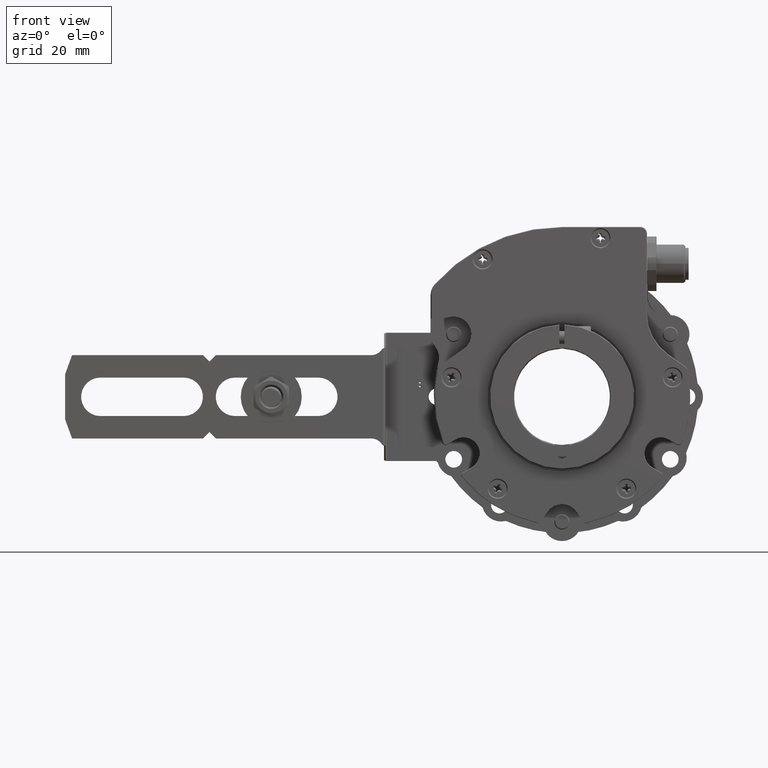
[diagram: clean part render]
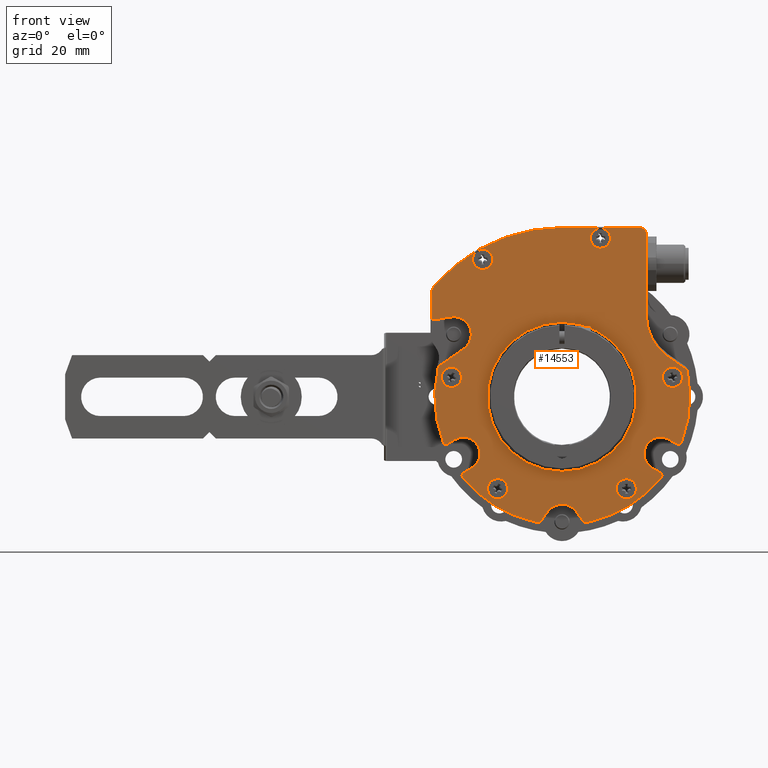
[diagram: same view with one face highlighted and labeled with its STEP entity id]
A machine part, front view. The second image highlights one B-rep face of the part: STEP entity #14553.
In plain terms, the highlighted planar face has unit normal (-0, 1, 0).
Its self-contained STEP definition (entity closure, byte-faithful):
#343 = DIRECTION ( 'NONE',  ( 0.8660254037844407100, 0.0000000000000000000, -0.4999999999999965000 ) ) ;
#371 = CARTESIAN_POINT ( 'NONE',  ( -38.56301421357414900, -1.999999999999994900, 9.433129637807208900 ) ) ;
#384 = CIRCLE ( 'NONE', #37308, 3.149999999999999900 ) ;
#396 = AXIS2_PLACEMENT_3D ( 'NONE', #24205, #2511, #27840 ) ;
#522 = AXIS2_PLACEMENT_3D ( 'NONE', #30004, #8299, #33669 ) ;
#925 = CARTESIAN_POINT ( 'NONE',  ( 16.79544052503335600, -1.999999999999994900, 23.98637490818222400 ) ) ;
#930 = CARTESIAN_POINT ( 'NONE',  ( -36.86646794779085200, -1.999999999999994900, -14.72934285888237600 ) ) ;
#941 = CARTESIAN_POINT ( 'NONE',  ( 34.46827135542729800, -1.999999999999998200, 9.227686218342460800 ) ) ;
#1096 = DIRECTION ( 'NONE',  ( 6.938893903907222100E-015, 0.0000000000000000000, 1.000000000000000000 ) ) ;
#1135 = CARTESIAN_POINT ( 'NONE',  ( -24.75000000000006000, -1.999999999999998200, 42.86825748732967900 ) ) ;
#1238 = AXIS2_PLACEMENT_3D ( 'NONE', #46941, #25255, #3541 ) ;
#1355 = AXIS2_PLACEMENT_3D ( 'NONE', #16885, #42249, #20550 ) ;
#1394 = DIRECTION ( 'NONE',  ( 0.0000000000000000000, -1.000000000000000000, 0.0000000000000000000 ) ) ;
#1531 = CARTESIAN_POINT ( 'NONE',  ( 39.07957754143955500, -1.999999999999994900, 8.049634723551941200 ) ) ;
#1577 = AXIS2_PLACEMENT_3D ( 'NONE', #10376, #35723, #14034 ) ;
#1630 = DIRECTION ( 'NONE',  ( -0.0000000000000000000, 1.000000000000000000, -0.0000000000000000000 ) ) ;
#1789 = VERTEX_POINT ( 'NONE', #31482 ) ;
#1838 = AXIS2_PLACEMENT_3D ( 'NONE', #1135, #26457, #4765 ) ;
#1936 = VERTEX_POINT ( 'NONE', #46654 ) ;
#2240 = ORIENTED_EDGE ( 'NONE', *, *, #26994, .F. ) ;
#2430 = DIRECTION ( 'NONE',  ( -0.0000000000000000000, -1.000000000000000000, -0.0000000000000000000 ) ) ;
#2489 = CARTESIAN_POINT ( 'NONE',  ( -35.79999999999999700, -1.999999999999994900, 31.67333263172665500 ) ) ;
#2511 = DIRECTION ( 'NONE',  ( -0.0000000000000000000, 1.000000000000000000, -0.0000000000000000000 ) ) ;
#2632 = CIRCLE ( 'NONE', #18481, 1.000000000000000900 ) ;
#2651 = EDGE_CURVE ( 'NONE', #32605, #38983, #4684, .T. ) ;
#2811 = EDGE_CURVE ( 'NONE', #12061, #1936, #19418, .T. ) ;
#2846 = CARTESIAN_POINT ( 'NONE',  ( -6.705581468056939400, -1.999999999999994900, -38.98760543173632700 ) ) ;
#2861 = CARTESIAN_POINT ( 'NONE',  ( -8.889178518051185300, -1.999999999999994900, -38.89720433751271100 ) ) ;
#2905 = CARTESIAN_POINT ( 'NONE',  ( 41.80000000000000400, -1.999999999999994900, 25.40000000000016600 ) ) ;
#2972 = CARTESIAN_POINT ( 'NONE',  ( -20.07517527228645400, -1.999999999999998200, -28.67032155011482800 ) ) ;
#3015 = EDGE_CURVE ( 'NONE', #28146, #20407, #33041, .T. ) ;
#3127 = DIRECTION ( 'NONE',  ( 0.0000000000000000000, 0.0000000000000000000, -1.000000000000000000 ) ) ;
#3303 = CARTESIAN_POINT ( 'NONE',  ( -34.73005572476111500, -1.999999999999994900, 24.91644264156730800 ) ) ;
#3415 = DIRECTION ( 'NONE',  ( -3.469446951953611000E-015, 0.0000000000000000000, 1.000000000000000000 ) ) ;
#3442 = AXIS2_PLACEMENT_3D ( 'NONE', #35722, #14033, #39368 ) ;
#3470 = ORIENTED_EDGE ( 'NONE', *, *, #30777, .F. ) ;
#3500 = AXIS2_PLACEMENT_3D ( 'NONE', #23315, #1630, #26951 ) ;
#3541 = DIRECTION ( 'NONE',  ( -6.938893903907234700E-015, 0.0000000000000000000, 1.000000000000000000 ) ) ;
#3544 = VECTOR ( 'NONE', #343, 1000.000000000000100 ) ;
#3545 = DIRECTION ( 'NONE',  ( 0.0000000000000000000, 0.0000000000000000000, -1.000000000000000000 ) ) ;
#3557 = VERTEX_POINT ( 'NONE', #36386 ) ;
#3594 = CARTESIAN_POINT ( 'NONE',  ( -40.60000000000000100, -1.999999999999994900, 24.20263589089835000 ) ) ;
#3763 = CIRCLE ( 'NONE', #25757, 23.25000000000000000 ) ;
#3801 = ORIENTED_EDGE ( 'NONE', *, *, #36822, .F. ) ;
#4265 = VECTOR ( 'NONE', #31098, 1000.000000000000000 ) ;
#4266 = AXIS2_PLACEMENT_3D ( 'NONE', #15745, #41120, #19403 ) ;
#4432 = CARTESIAN_POINT ( 'NONE',  ( -10.11450387768230100, -1.999999999999994900, -44.25897435897435600 ) ) ;
#4559 = DIRECTION ( 'NONE',  ( 0.0000000000000000000, -1.000000000000000000, 0.0000000000000000000 ) ) ;
#4566 = DIRECTION ( 'NONE',  ( 0.0000000000000000000, -1.000000000000000000, 0.0000000000000000000 ) ) ;
#4684 = LINE ( 'NONE', #11248, #3544 ) ;
#4765 = DIRECTION ( 'NONE',  ( 0.0000000000000000000, 0.0000000000000000000, -1.000000000000000000 ) ) ;
#4796 = CARTESIAN_POINT ( 'NONE',  ( 24.30000000000000100, -1.999999999999994900, 52.79999999999999700 ) ) ;
#5137 = EDGE_LOOP ( 'NONE', ( #2240, #9451, #10392, #44400, #44473, #22489, #11065, #24380, #45557, #26263, #35841, #29350, #18141, #28291, #18499, #9796, #5251, #6901, #40047, #10492, #33436, #38862, #23405, #42640, #17397, #9057, #45812, #6167, #45465, #32467, #6317, #13462, #17254, #12431, #18051, #32486, #3470 ) ) ;
#5220 = CARTESIAN_POINT ( 'NONE',  ( -24.75000000000006000, -1.999999999999998200, 42.86825748732967900 ) ) ;
#5251 = ORIENTED_EDGE ( 'NONE', *, *, #42923, .F. ) ;
#5294 = ORIENTED_EDGE ( 'NONE', *, *, #11383, .F. ) ;
#5315 = CARTESIAN_POINT ( 'NONE',  ( 32.90956523655881900, -1.999999999999994900, 12.70314331352077800 ) ) ;
#5821 = CIRCLE ( 'NONE', #11617, 52.79999999999999700 ) ;
#5983 = AXIS2_PLACEMENT_3D ( 'NONE', #37718, #15982, #41373 ) ;
#6066 = CARTESIAN_POINT ( 'NONE',  ( -4.505336243589449700, -1.999999999999994900, -35.84532960006924200 ) ) ;
#6078 = AXIS2_PLACEMENT_3D ( 'NONE', #5220, #30588, #8869 ) ;
#6093 = VERTEX_POINT ( 'NONE', #14452 ) ;
#6137 = DIRECTION ( 'NONE',  ( 1.387778780781446500E-015, 0.0000000000000000000, 1.000000000000000000 ) ) ;
#6167 = ORIENTED_EDGE ( 'NONE', *, *, #27411, .F. ) ;
#6317 = ORIENTED_EDGE ( 'NONE', *, *, #42594, .F. ) ;
#6495 = AXIS2_PLACEMENT_3D ( 'NONE', #38179, #20276, #45597 ) ;
#6540 = DIRECTION ( 'NONE',  ( 0.0000000000000000000, 0.0000000000000000000, -1.000000000000000000 ) ) ;
#6611 = DIRECTION ( 'NONE',  ( 0.0000000000000000000, 0.0000000000000000000, -1.000000000000000000 ) ) ;
#6901 = ORIENTED_EDGE ( 'NONE', *, *, #22506, .F. ) ;
#7048 = EDGE_LOOP ( 'NONE', ( #29308, #31405 ) ) ;
#7134 = DIRECTION ( 'NONE',  ( 0.0000000000000000000, -1.000000000000000000, 0.0000000000000000000 ) ) ;
#7225 = CARTESIAN_POINT ( 'NONE',  ( -40.60000000000000100, -1.999999999999994900, 24.40263589089834900 ) ) ;
#7226 = VECTOR ( 'NONE', #19914, 1000.000000000000000 ) ;
#7443 = VERTEX_POINT ( 'NONE', #41919 ) ;
#7467 = DIRECTION ( 'NONE',  ( -0.0000000000000000000, 1.000000000000000000, -0.0000000000000000000 ) ) ;
#7508 = CIRCLE ( 'NONE', #3442, 5.499999999999998200 ) ;
#7531 = VECTOR ( 'NONE', #19354, 1000.000000000000000 ) ;
#7584 = CIRCLE ( 'NONE', #1838, 3.149999999999999900 ) ;
#7632 = DIRECTION ( 'NONE',  ( 0.0000000000000000000, -1.000000000000000000, 0.0000000000000000000 ) ) ;
#7648 = ORIENTED_EDGE ( 'NONE', *, *, #29433, .F. ) ;
#7771 = LINE ( 'NONE', #17580, #25916 ) ;
#7961 = ORIENTED_EDGE ( 'NONE', *, *, #28553, .F. ) ;
#8020 = AXIS2_PLACEMENT_3D ( 'NONE', #33242, #11510, #36880 ) ;
#8092 = DIRECTION ( 'NONE',  ( 5.361872562110132700E-015, 0.0000000000000000000, 1.000000000000000000 ) ) ;
#8178 = CARTESIAN_POINT ( 'NONE',  ( 0.0000000000000000000, -1.999999999999994900, 0.0000000000000000000 ) ) ;
#8299 = DIRECTION ( 'NONE',  ( 0.0000000000000000000, -1.000000000000000000, 0.0000000000000000000 ) ) ;
#8599 = FACE_BOUND ( 'NONE', #41035, .T. ) ;
#8684 = LINE ( 'NONE', #925, #46075 ) ;
#8703 = CARTESIAN_POINT ( 'NONE',  ( 30.68970539475742500, -1.999999999999994900, -23.66541744366655600 ) ) ;
#8859 = AXIS2_PLACEMENT_3D ( 'NONE', #46944, #25258, #3545 ) ;
#8869 = DIRECTION ( 'NONE',  ( 0.0000000000000000000, 0.0000000000000000000, -1.000000000000000000 ) ) ;
#8904 = LINE ( 'NONE', #12387, #27024 ) ;
#8986 = CARTESIAN_POINT ( 'NONE',  ( 59.99999999999999300, -1.999999999999994900, 52.79999999999999700 ) ) ;
#9027 = CARTESIAN_POINT ( 'NONE',  ( -34.46827135542729800, -1.999999999999998200, 2.927686218342452100 ) ) ;
#9050 = EDGE_CURVE ( 'NONE', #14739, #10476, #7771, .T. ) ;
#9057 = ORIENTED_EDGE ( 'NONE', *, *, #37375, .F. ) ;
#9235 = CARTESIAN_POINT ( 'NONE',  ( -39.99999999999999300, -1.999999999999994900, 24.00263589089834300 ) ) ;
#9329 = VERTEX_POINT ( 'NONE', #941 ) ;
#9451 = ORIENTED_EDGE ( 'NONE', *, *, #45194, .T. ) ;
#9461 = VERTEX_POINT ( 'NONE', #20077 ) ;
#9590 = VERTEX_POINT ( 'NONE', #17365 ) ;
#9594 = EDGE_CURVE ( 'NONE', #43423, #40824, #384, .T. ) ;
#9796 = ORIENTED_EDGE ( 'NONE', *, *, #10364, .T. ) ;
#9818 = LINE ( 'NONE', #7225, #10936 ) ;
#10235 = CARTESIAN_POINT ( 'NONE',  ( 35.83970539475740900, -1.999999999999994900, -14.74535578468682000 ) ) ;
#10316 = AXIS2_PLACEMENT_3D ( 'NONE', #29334, #7632, #33012 ) ;
#10364 = EDGE_CURVE ( 'NONE', #23538, #29425, #34329, .T. ) ;
#10376 = CARTESIAN_POINT ( 'NONE',  ( 34.46827135542729800, -1.999999999999998200, 6.077686218342461400 ) ) ;
#10392 = ORIENTED_EDGE ( 'NONE', *, *, #26437, .T. ) ;
#10476 = VERTEX_POINT ( 'NONE', #15538 ) ;
#10492 = ORIENTED_EDGE ( 'NONE', *, *, #32470, .T. ) ;
#10631 = DIRECTION ( 'NONE',  ( -0.0000000000000000000, -1.000000000000000000, -0.0000000000000000000 ) ) ;
#10898 = EDGE_CURVE ( 'NONE', #28803, #28146, #46186, .T. ) ;
#10936 = VECTOR ( 'NONE', #32591, 1000.000000000000000 ) ;
#11037 = EDGE_CURVE ( 'NONE', #37929, #34377, #29738, .T. ) ;
#11065 = ORIENTED_EDGE ( 'NONE', *, *, #44100, .T. ) ;
#11248 = CARTESIAN_POINT ( 'NONE',  ( 47.57500000000015200, -1.999999999999994900, -21.52073128404321900 ) ) ;
#11363 = ORIENTED_EDGE ( 'NONE', *, *, #34921, .F. ) ;
#11383 = EDGE_CURVE ( 'NONE', #39924, #30621, #30295, .T. ) ;
#11465 = EDGE_CURVE ( 'NONE', #32981, #32439, #18368, .T. ) ;
#11473 = CIRCLE ( 'NONE', #42866, 1.000000000000000900 ) ;
#11510 = DIRECTION ( 'NONE',  ( 0.0000000000000000000, -1.000000000000000000, 0.0000000000000000000 ) ) ;
#11537 = CARTESIAN_POINT ( 'NONE',  ( 30.74390183434760700, -1.999999999999994900, -17.74999999999992900 ) ) ;
#11600 = EDGE_CURVE ( 'NONE', #44202, #28822, #14969, .T. ) ;
#11617 = AXIS2_PLACEMENT_3D ( 'NONE', #8178, #33548, #11825 ) ;
#11825 = DIRECTION ( 'NONE',  ( 0.0000000000000000000, 0.0000000000000000000, 1.000000000000000000 ) ) ;
#12061 = VERTEX_POINT ( 'NONE', #27244 ) ;
#12144 = CARTESIAN_POINT ( 'NONE',  ( 11.99999999999998900, -1.999999999999998200, 49.50000000000000000 ) ) ;
#12250 = AXIS2_PLACEMENT_3D ( 'NONE', #2905, #28246, #6540 ) ;
#12322 = AXIS2_PLACEMENT_3D ( 'NONE', #11537, #36901, #15201 ) ;
#12387 = CARTESIAN_POINT ( 'NONE',  ( -13.81866986173577600, -1.999999999999994900, -9.675936805218736200 ) ) ;
#12389 = DIRECTION ( 'NONE',  ( 0.8660254037844407100, 0.0000000000000000000, 0.4999999999999965000 ) ) ;
#12431 = ORIENTED_EDGE ( 'NONE', *, *, #44436, .T. ) ;
#12438 = DIRECTION ( 'NONE',  ( 0.0000000000000000000, -1.000000000000000000, 0.0000000000000000000 ) ) ;
#12649 = DIRECTION ( 'NONE',  ( 0.0000000000000000000, -1.000000000000000000, 0.0000000000000000000 ) ) ;
#13400 = CARTESIAN_POINT ( 'NONE',  ( -7.865459943235269000, -1.999999999999994900, -39.23983086820553700 ) ) ;
#13462 = ORIENTED_EDGE ( 'NONE', *, *, #16900, .T. ) ;
#13862 = CARTESIAN_POINT ( 'NONE',  ( 11.99999999999998900, -1.999999999999998200, 46.35000000000000100 ) ) ;
#13926 = AXIS2_PLACEMENT_3D ( 'NONE', #20210, #45548, #23848 ) ;
#14001 = EDGE_CURVE ( 'NONE', #9329, #25181, #46031, .T. ) ;
#14033 = DIRECTION ( 'NONE',  ( 0.0000000000000000000, -1.000000000000000000, 0.0000000000000000000 ) ) ;
#14034 = DIRECTION ( 'NONE',  ( 0.0000000000000000000, 0.0000000000000000000, -1.000000000000000000 ) ) ;
#14138 = DIRECTION ( 'NONE',  ( -0.0000000000000000000, -1.000000000000000000, -0.0000000000000000000 ) ) ;
#14452 = CARTESIAN_POINT ( 'NONE',  ( 30.96579036634502200, -1.999999999999994900, -25.16207119828520800 ) ) ;
#14512 = VERTEX_POINT ( 'NONE', #16463 ) ;
#14553 = ADVANCED_FACE ( 'NONE', ( #27846, #28989, #30146, #37504, #18225, #8599, #45990, #36362 ), #41989, .F. ) ;
#14652 = VERTEX_POINT ( 'NONE', #2846 ) ;
#14739 = VERTEX_POINT ( 'NONE', #3303 ) ;
#14803 = CIRCLE ( 'NONE', #21704, 1.000000000000000900 ) ;
#14807 = CARTESIAN_POINT ( 'NONE',  ( -30.62032034766227900, -1.999999999999994900, 14.99466375641069900 ) ) ;
#14899 = EDGE_CURVE ( 'NONE', #7443, #14652, #26133, .T. ) ;
#14913 = AXIS2_PLACEMENT_3D ( 'NONE', #35810, #14138, #39457 ) ;
#14969 = CIRCLE ( 'NONE', #23697, 39.90000000000000600 ) ;
#15121 = VERTEX_POINT ( 'NONE', #5315 ) ;
#15201 = DIRECTION ( 'NONE',  ( 0.0000000000000000000, 0.0000000000000000000, 1.000000000000000000 ) ) ;
#15315 = CIRCLE ( 'NONE', #18351, 1.000000000000031300 ) ;
#15444 = CARTESIAN_POINT ( 'NONE',  ( -34.46827135542729800, -1.999999999999998200, 6.077686218342452500 ) ) ;
#15533 = CARTESIAN_POINT ( 'NONE',  ( 13.81866986173578100, -1.999999999999994900, -9.675936805218752200 ) ) ;
#15538 = CARTESIAN_POINT ( 'NONE',  ( -39.82635182233306600, -1.999999999999994900, 24.01782813788613400 ) ) ;
#15745 = CARTESIAN_POINT ( 'NONE',  ( 0.0000000000000000000, -1.999999999999997300, 0.0000000000000000000 ) ) ;
#15787 = DIRECTION ( 'NONE',  ( 0.0000000000000000000, 0.0000000000000000000, -1.000000000000000000 ) ) ;
#15793 = DIRECTION ( 'NONE',  ( 0.8191520442889929100, 0.0000000000000000000, -0.5735764363510443800 ) ) ;
#15838 = AXIS2_PLACEMENT_3D ( 'NONE', #32366, #10631, #35987 ) ;
#15912 = AXIS2_PLACEMENT_3D ( 'NONE', #17035, #42405, #20692 ) ;
#15982 = DIRECTION ( 'NONE',  ( -0.0000000000000000000, -1.000000000000000000, -0.0000000000000000000 ) ) ;
#16108 = CARTESIAN_POINT ( 'NONE',  ( -7.456542864244902100, -1.999999999999994900, -38.32725932442939200 ) ) ;
#16253 = AXIS2_PLACEMENT_3D ( 'NONE', #2489, #27822, #6137 ) ;
#16463 = CARTESIAN_POINT ( 'NONE',  ( 26.29999999999999700, -1.999999999999994900, 50.79999999999999700 ) ) ;
#16651 = EDGE_CURVE ( 'NONE', #27041, #32605, #35644, .T. ) ;
#16885 = CARTESIAN_POINT ( 'NONE',  ( 7.456542864244899400, -1.999999999999994900, -38.32725932442939900 ) ) ;
#16900 = EDGE_CURVE ( 'NONE', #40377, #39699, #28812, .T. ) ;
#17035 = CARTESIAN_POINT ( 'NONE',  ( -39.99999999999999300, -1.999999999999994900, 25.00263589089834300 ) ) ;
#17158 = LINE ( 'NONE', #15533, #7531 ) ;
#17214 = ORIENTED_EDGE ( 'NONE', *, *, #22169, .F. ) ;
#17254 = ORIENTED_EDGE ( 'NONE', *, *, #21637, .T. ) ;
#17345 = CIRCLE ( 'NONE', #13926, 3.150000000000003500 ) ;
#17364 = CARTESIAN_POINT ( 'NONE',  ( -39.54476987447697700, -1.999999999999994900, 34.98644273964784900 ) ) ;
#17365 = CARTESIAN_POINT ( 'NONE',  ( -28.16890183434761500, -1.999999999999994900, -22.21003082948978900 ) ) ;
#17397 = ORIENTED_EDGE ( 'NONE', *, *, #30991, .T. ) ;
#17403 = VECTOR ( 'NONE', #12389, 1000.000000000000100 ) ;
#17486 = EDGE_LOOP ( 'NONE', ( #21977, #35120 ) ) ;
#17580 = CARTESIAN_POINT ( 'NONE',  ( -5.308201962077027300, -1.999999999999994900, 30.10430928238725200 ) ) ;
#17862 = EDGE_CURVE ( 'NONE', #3557, #35462, #27032, .T. ) ;
#18019 = VECTOR ( 'NONE', #42766, 1000.000000000000100 ) ;
#18051 = ORIENTED_EDGE ( 'NONE', *, *, #37770, .T. ) ;
#18141 = ORIENTED_EDGE ( 'NONE', *, *, #39326, .F. ) ;
#18225 = FACE_BOUND ( 'NONE', #43542, .T. ) ;
#18323 = EDGE_LOOP ( 'NONE', ( #3801, #30972 ) ) ;
#18351 = AXIS2_PLACEMENT_3D ( 'NONE', #46539, #24842, #3127 ) ;
#18368 = CIRCLE ( 'NONE', #4266, 23.25000000000000000 ) ;
#18372 = CARTESIAN_POINT ( 'NONE',  ( -34.46827135542729800, -1.999999999999998200, 9.227686218342452000 ) ) ;
#18408 = EDGE_CURVE ( 'NONE', #14512, #24034, #31577, .T. ) ;
#18466 = VERTEX_POINT ( 'NONE', #930 ) ;
#18481 = AXIS2_PLACEMENT_3D ( 'NONE', #44487, #22790, #1096 ) ;
#18499 = ORIENTED_EDGE ( 'NONE', *, *, #44319, .T. ) ;
#18731 = DIRECTION ( 'NONE',  ( -0.8660254037844391500, -0.0000000000000000000, -0.4999999999999990600 ) ) ;
#18980 = VERTEX_POINT ( 'NONE', #13862 ) ;
#19085 = DIRECTION ( 'NONE',  ( 0.0000000000000000000, 0.0000000000000000000, -1.000000000000000000 ) ) ;
#19354 = DIRECTION ( 'NONE',  ( -0.5735764363510472700, 0.0000000000000000000, -0.8191520442889909100 ) ) ;
#19403 = DIRECTION ( 'NONE',  ( 0.0000000000000000000, 0.0000000000000000000, 1.000000000000000000 ) ) ;
#19418 = CIRCLE ( 'NONE', #5983, 3.150000000000003500 ) ;
#19490 = CARTESIAN_POINT ( 'NONE',  ( 11.99999999999998900, -1.999999999999998200, 52.65000000000000600 ) ) ;
#19632 = CIRCLE ( 'NONE', #33085, 1.000000000000000900 ) ;
#19768 = DIRECTION ( 'NONE',  ( 0.0000000000000000000, 0.0000000000000000000, -1.000000000000000000 ) ) ;
#19914 = DIRECTION ( 'NONE',  ( 1.000000000000000000, 0.0000000000000000000, 0.0000000000000000000 ) ) ;
#20059 = VERTEX_POINT ( 'NONE', #3594 ) ;
#20077 = CARTESIAN_POINT ( 'NONE',  ( 6.705581468056935900, -1.999999999999994900, -38.98760543173633400 ) ) ;
#20114 = CARTESIAN_POINT ( 'NONE',  ( -33.31890183434759900, -1.999999999999994900, -13.28996917051006400 ) ) ;
#20145 = EDGE_LOOP ( 'NONE', ( #5294, #7648 ) ) ;
#20177 = CARTESIAN_POINT ( 'NONE',  ( 8.889178518051192400, -1.999999999999994900, -38.89720433751271100 ) ) ;
#20210 = CARTESIAN_POINT ( 'NONE',  ( 20.07517527228646200, -1.999999999999998200, -28.67032155011482400 ) ) ;
#20276 = DIRECTION ( 'NONE',  ( -0.0000000000000000000, 1.000000000000000000, 0.0000000000000000000 ) ) ;
#20407 = VERTEX_POINT ( 'NONE', #34613 ) ;
#20509 = DIRECTION ( 'NONE',  ( -0.0000000000000000000, 1.000000000000000000, -0.0000000000000000000 ) ) ;
#20550 = DIRECTION ( 'NONE',  ( 0.0000000000000000000, 0.0000000000000000000, -1.000000000000000000 ) ) ;
#20647 = EDGE_CURVE ( 'NONE', #38983, #28822, #33643, .T. ) ;
#20692 = DIRECTION ( 'NONE',  ( 0.0000000000000000000, 0.0000000000000000000, -1.000000000000000000 ) ) ;
#20883 = EDGE_CURVE ( 'NONE', #43180, #14652, #17158, .T. ) ;
#21087 = EDGE_CURVE ( 'NONE', #40824, #43423, #39910, .T. ) ;
#21529 = CIRCLE ( 'NONE', #28680, 39.69999999999999600 ) ;
#21637 = EDGE_CURVE ( 'NONE', #39699, #20059, #9818, .T. ) ;
#21704 = AXIS2_PLACEMENT_3D ( 'NONE', #26240, #4559, #29893 ) ;
#21828 = CARTESIAN_POINT ( 'NONE',  ( 2.847303808017595700E-015, -1.999999999999997300, -23.25000000000000000 ) ) ;
#21977 = ORIENTED_EDGE ( 'NONE', *, *, #26491, .F. ) ;
#22135 = CARTESIAN_POINT ( 'NONE',  ( 34.46827135542729800, -1.999999999999998200, 2.927686218342461000 ) ) ;
#22169 = EDGE_CURVE ( 'NONE', #25181, #9329, #32478, .T. ) ;
#22223 = EDGE_CURVE ( 'NONE', #43597, #18980, #40968, .T. ) ;
#22489 = ORIENTED_EDGE ( 'NONE', *, *, #41110, .T. ) ;
#22506 = EDGE_CURVE ( 'NONE', #6093, #40728, #30743, .T. ) ;
#22790 = DIRECTION ( 'NONE',  ( 0.0000000000000000000, -1.000000000000000000, 0.0000000000000000000 ) ) ;
#23099 = CARTESIAN_POINT ( 'NONE',  ( 0.0000000000000000000, -1.999999999999997300, 0.0000000000000000000 ) ) ;
#23315 = CARTESIAN_POINT ( 'NONE',  ( 0.0000000000000000000, -1.999999999999994900, 0.0000000000000000000 ) ) ;
#23405 = ORIENTED_EDGE ( 'NONE', *, *, #20647, .T. ) ;
#23538 = VERTEX_POINT ( 'NONE', #41317 ) ;
#23697 = AXIS2_PLACEMENT_3D ( 'NONE', #42204, #20509, #45823 ) ;
#23848 = DIRECTION ( 'NONE',  ( 0.0000000000000000000, 0.0000000000000000000, -1.000000000000000000 ) ) ;
#24034 = VERTEX_POINT ( 'NONE', #4796 ) ;
#24118 = CARTESIAN_POINT ( 'NONE',  ( 34.46827135542729800, -1.999999999999998200, 6.077686218342461400 ) ) ;
#24130 = VECTOR ( 'NONE', #26069, 1000.000000000000000 ) ;
#24152 = VERTEX_POINT ( 'NONE', #9235 ) ;
#24205 = CARTESIAN_POINT ( 'NONE',  ( -30.74390183434760700, -1.999999999999994900, -17.74999999999992900 ) ) ;
#24380 = ORIENTED_EDGE ( 'NONE', *, *, #3015, .F. ) ;
#24559 = CIRCLE ( 'NONE', #396, 5.149999999999998600 ) ;
#24726 = CARTESIAN_POINT ( 'NONE',  ( 38.67371594417053900, -1.999999999999994900, 8.667041536674240400 ) ) ;
#24842 = DIRECTION ( 'NONE',  ( 0.0000000000000000000, -1.000000000000000000, 0.0000000000000000000 ) ) ;
#25121 = DIRECTION ( 'NONE',  ( 0.0000000000000000000, -1.000000000000000000, 0.0000000000000000000 ) ) ;
#25181 = VERTEX_POINT ( 'NONE', #22135 ) ;
#25255 = DIRECTION ( 'NONE',  ( 0.0000000000000000000, -1.000000000000000000, 0.0000000000000000000 ) ) ;
#25258 = DIRECTION ( 'NONE',  ( -0.0000000000000000000, -1.000000000000000000, -0.0000000000000000000 ) ) ;
#25379 = CARTESIAN_POINT ( 'NONE',  ( -40.59999999999999400, -1.999999999999994900, 33.07333263172665000 ) ) ;
#25725 = CIRCLE ( 'NONE', #34048, 3.149999999999999900 ) ;
#25757 = AXIS2_PLACEMENT_3D ( 'NONE', #23099, #1394, #26741 ) ;
#25777 = AXIS2_PLACEMENT_3D ( 'NONE', #34143, #12438, #37777 ) ;
#25797 = VERTEX_POINT ( 'NONE', #371 ) ;
#25916 = VECTOR ( 'NONE', #42960, 999.9999999999998900 ) ;
#26069 = DIRECTION ( 'NONE',  ( 0.8191520442889931300, 0.0000000000000000000, 0.5735764363510441600 ) ) ;
#26133 = CIRCLE ( 'NONE', #8020, 1.000000000000000900 ) ;
#26240 = CARTESIAN_POINT ( 'NONE',  ( -30.18970539475742500, -1.999999999999994900, -24.53144284745100000 ) ) ;
#26250 = CARTESIAN_POINT ( 'NONE',  ( 24.30000000000000100, -1.999999999999994900, 50.79999999999999700 ) ) ;
#26263 = ORIENTED_EDGE ( 'NONE', *, *, #26521, .T. ) ;
#26437 = EDGE_CURVE ( 'NONE', #18466, #3557, #2632, .T. ) ;
#26457 = DIRECTION ( 'NONE',  ( -0.0000000000000000000, -1.000000000000000000, -0.0000000000000000000 ) ) ;
#26491 = EDGE_CURVE ( 'NONE', #32439, #32981, #3763, .T. ) ;
#26521 = EDGE_CURVE ( 'NONE', #28803, #7443, #19632, .T. ) ;
#26741 = DIRECTION ( 'NONE',  ( 0.0000000000000000000, 0.0000000000000000000, 1.000000000000000000 ) ) ;
#26768 = CARTESIAN_POINT ( 'NONE',  ( 33.31890183434759900, -1.999999999999994900, -13.28996917051005700 ) ) ;
#26783 = ORIENTED_EDGE ( 'NONE', *, *, #14001, .F. ) ;
#26951 = DIRECTION ( 'NONE',  ( 0.0000000000000000000, 0.0000000000000000000, 1.000000000000000000 ) ) ;
#26957 = CARTESIAN_POINT ( 'NONE',  ( 0.0000000000000000000, -1.999999999999994900, 52.79999999999999700 ) ) ;
#26994 = EDGE_CURVE ( 'NONE', #25797, #27174, #44550, .T. ) ;
#27024 = VECTOR ( 'NONE', #34100, 1000.000000000000100 ) ;
#27032 = LINE ( 'NONE', #34101, #17403 ) ;
#27041 = VERTEX_POINT ( 'NONE', #28429 ) ;
#27174 = VERTEX_POINT ( 'NONE', #14807 ) ;
#27244 = CARTESIAN_POINT ( 'NONE',  ( 20.07517527228646200, -1.999999999999998200, -31.82032155011482600 ) ) ;
#27411 = EDGE_CURVE ( 'NONE', #14512, #44640, #30935, .T. ) ;
#27753 = DIRECTION ( 'NONE',  ( 0.0000000000000000000, 0.0000000000000000000, -1.000000000000000000 ) ) ;
#27822 = DIRECTION ( 'NONE',  ( 0.0000000000000000000, -1.000000000000000000, 0.0000000000000000000 ) ) ;
#27840 = DIRECTION ( 'NONE',  ( 0.0000000000000000000, 0.0000000000000000000, 1.000000000000000000 ) ) ;
#27846 = FACE_BOUND ( 'NONE', #7048, .T. ) ;
#28146 = VERTEX_POINT ( 'NONE', #2861 ) ;
#28246 = DIRECTION ( 'NONE',  ( 0.0000000000000000000, -1.000000000000000000, 0.0000000000000000000 ) ) ;
#28291 = ORIENTED_EDGE ( 'NONE', *, *, #38260, .F. ) ;
#28312 = DIRECTION ( 'NONE',  ( -0.0000000000000000000, -1.000000000000000000, -0.0000000000000000000 ) ) ;
#28429 = CARTESIAN_POINT ( 'NONE',  ( 28.16890183434761500, -1.999999999999994900, -22.21003082948979200 ) ) ;
#28553 = EDGE_CURVE ( 'NONE', #18980, #43597, #25725, .T. ) ;
#28680 = AXIS2_PLACEMENT_3D ( 'NONE', #28842, #7134, #32509 ) ;
#28803 = VERTEX_POINT ( 'NONE', #13400 ) ;
#28812 = CIRCLE ( 'NONE', #16253, 4.999999999999997300 ) ;
#28822 = VERTEX_POINT ( 'NONE', #46180 ) ;
#28839 = AXIS2_PLACEMENT_3D ( 'NONE', #4432, #29788, #8092 ) ;
#28842 = CARTESIAN_POINT ( 'NONE',  ( 0.0000000000000000000, -1.999999999999994900, 0.0000000000000000000 ) ) ;
#28895 = EDGE_CURVE ( 'NONE', #6093, #32302, #11473, .T. ) ;
#28989 = FACE_BOUND ( 'NONE', #20145, .T. ) ;
#29148 = CARTESIAN_POINT ( 'NONE',  ( 0.0000000000000000000, -1.999999999999994900, 0.0000000000000000000 ) ) ;
#29308 = ORIENTED_EDGE ( 'NONE', *, *, #9594, .F. ) ;
#29334 = CARTESIAN_POINT ( 'NONE',  ( 7.456542864244899400, -1.999999999999994900, -38.32725932442939900 ) ) ;
#29350 = ORIENTED_EDGE ( 'NONE', *, *, #20883, .F. ) ;
#29425 = VERTEX_POINT ( 'NONE', #46607 ) ;
#29433 = EDGE_CURVE ( 'NONE', #30621, #39924, #33013, .T. ) ;
#29738 = CIRCLE ( 'NONE', #6078, 3.149999999999999900 ) ;
#29788 = DIRECTION ( 'NONE',  ( 0.0000000000000000000, -1.000000000000000000, 0.0000000000000000000 ) ) ;
#29893 = DIRECTION ( 'NONE',  ( 3.469446951953611000E-015, 0.0000000000000000000, 1.000000000000000000 ) ) ;
#29906 = DIRECTION ( 'NONE',  ( 0.0000000000000000000, 0.0000000000000000000, 1.000000000000000000 ) ) ;
#29936 = LINE ( 'NONE', #31852, #18019 ) ;
#30004 = CARTESIAN_POINT ( 'NONE',  ( -39.99999999999999300, -1.999999999999994900, 25.00263589089834300 ) ) ;
#30146 = FACE_BOUND ( 'NONE', #18323, .T. ) ;
#30295 = CIRCLE ( 'NONE', #36752, 3.149999999999999900 ) ;
#30453 = VERTEX_POINT ( 'NONE', #24726 ) ;
#30588 = DIRECTION ( 'NONE',  ( -0.0000000000000000000, -1.000000000000000000, -0.0000000000000000000 ) ) ;
#30621 = VERTEX_POINT ( 'NONE', #18372 ) ;
#30743 = CIRCLE ( 'NONE', #3500, 39.90000000000000600 ) ;
#30777 = EDGE_CURVE ( 'NONE', #27174, #14739, #32927, .T. ) ;
#30780 = AXIS2_PLACEMENT_3D ( 'NONE', #34345, #12649, #38018 ) ;
#30889 = VECTOR ( 'NONE', #18731, 1000.000000000000000 ) ;
#30935 = LINE ( 'NONE', #45486, #4265 ) ;
#30972 = ORIENTED_EDGE ( 'NONE', *, *, #11037, .F. ) ;
#30991 = EDGE_CURVE ( 'NONE', #44202, #30453, #15315, .T. ) ;
#31098 = DIRECTION ( 'NONE',  ( 1.584222352490246600E-016, 0.0000000000000000000, -1.000000000000000000 ) ) ;
#31405 = ORIENTED_EDGE ( 'NONE', *, *, #21087, .F. ) ;
#31482 = CARTESIAN_POINT ( 'NONE',  ( 4.505336243589449700, -1.999999999999994900, -35.84532960006924200 ) ) ;
#31577 = CIRCLE ( 'NONE', #36050, 2.000000000000001800 ) ;
#31723 = ORIENTED_EDGE ( 'NONE', *, *, #2811, .F. ) ;
#31852 = CARTESIAN_POINT ( 'NONE',  ( 42.42500000000004700, -1.999999999999994900, -30.44079294302294200 ) ) ;
#32302 = VERTEX_POINT ( 'NONE', #8703 ) ;
#32358 = CIRCLE ( 'NONE', #15912, 1.000000000000000900 ) ;
#32366 = CARTESIAN_POINT ( 'NONE',  ( -34.46827135542729800, -1.999999999999998200, 6.077686218342452500 ) ) ;
#32439 = VERTEX_POINT ( 'NONE', #45582 ) ;
#32467 = ORIENTED_EDGE ( 'NONE', *, *, #38836, .F. ) ;
#32470 = EDGE_CURVE ( 'NONE', #32302, #27041, #29936, .T. ) ;
#32478 = CIRCLE ( 'NONE', #1577, 3.149999999999999900 ) ;
#32486 = ORIENTED_EDGE ( 'NONE', *, *, #9050, .F. ) ;
#32509 = DIRECTION ( 'NONE',  ( 0.0000000000000000000, 0.0000000000000000000, 1.000000000000000000 ) ) ;
#32591 = DIRECTION ( 'NONE',  ( -4.951339166780651200E-016, 0.0000000000000000000, -1.000000000000000000 ) ) ;
#32605 = VERTEX_POINT ( 'NONE', #26768 ) ;
#32836 = DIRECTION ( 'NONE',  ( 0.0000000000000000000, 0.0000000000000000000, 1.000000000000000000 ) ) ;
#32927 = CIRCLE ( 'NONE', #30780, 5.499999999999998200 ) ;
#32981 = VERTEX_POINT ( 'NONE', #21828 ) ;
#33012 = DIRECTION ( 'NONE',  ( 0.0000000000000000000, 0.0000000000000000000, -1.000000000000000000 ) ) ;
#33013 = CIRCLE ( 'NONE', #15838, 3.149999999999999900 ) ;
#33041 = CIRCLE ( 'NONE', #35161, 39.90000000000000600 ) ;
#33085 = AXIS2_PLACEMENT_3D ( 'NONE', #16108, #41503, #19768 ) ;
#33161 = CARTESIAN_POINT ( 'NONE',  ( 47.57500000000001700, -1.999999999999994900, 21.52073128404330000 ) ) ;
#33242 = CARTESIAN_POINT ( 'NONE',  ( -7.456542864244902100, -1.999999999999994900, -38.32725932442939200 ) ) ;
#33436 = ORIENTED_EDGE ( 'NONE', *, *, #16651, .T. ) ;
#33548 = DIRECTION ( 'NONE',  ( -0.0000000000000000000, 1.000000000000000000, -0.0000000000000000000 ) ) ;
#33643 = CIRCLE ( 'NONE', #1238, 0.9999999999999991100 ) ;
#33669 = DIRECTION ( 'NONE',  ( 0.0000000000000000000, 0.0000000000000000000, -1.000000000000000000 ) ) ;
#34048 = AXIS2_PLACEMENT_3D ( 'NONE', #12144, #37498, #15787 ) ;
#34100 = DIRECTION ( 'NONE',  ( -0.5735764363510468300, 0.0000000000000000000, 0.8191520442889912400 ) ) ;
#34101 = CARTESIAN_POINT ( 'NONE',  ( 42.42500000000025300, -1.999999999999994900, 30.44079294302285300 ) ) ;
#34143 = CARTESIAN_POINT ( 'NONE',  ( 0.0000000000000000000, -1.999999999999994900, -39.00000000000000000 ) ) ;
#34259 = ORIENTED_EDGE ( 'NONE', *, *, #22223, .F. ) ;
#34329 = CIRCLE ( 'NONE', #10316, 0.9999999999999940000 ) ;
#34345 = CARTESIAN_POINT ( 'NONE',  ( -33.77499074759302300, -1.999999999999994900, 19.50000000000016000 ) ) ;
#34377 = VERTEX_POINT ( 'NONE', #34508 ) ;
#34508 = CARTESIAN_POINT ( 'NONE',  ( -24.75000000000006000, -1.999999999999998200, 39.71825748732967300 ) ) ;
#34613 = CARTESIAN_POINT ( 'NONE',  ( -30.96579036634502200, -1.999999999999994900, -25.16207119828521500 ) ) ;
#34921 = EDGE_CURVE ( 'NONE', #1936, #12061, #17345, .T. ) ;
#35120 = ORIENTED_EDGE ( 'NONE', *, *, #11465, .F. ) ;
#35161 = AXIS2_PLACEMENT_3D ( 'NONE', #29148, #7467, #32836 ) ;
#35462 = VERTEX_POINT ( 'NONE', #20114 ) ;
#35644 = CIRCLE ( 'NONE', #12322, 5.149999999999996800 ) ;
#35722 = CARTESIAN_POINT ( 'NONE',  ( 10.11450387768230100, -1.999999999999994900, -44.25897435897435600 ) ) ;
#35723 = DIRECTION ( 'NONE',  ( -0.0000000000000000000, -1.000000000000000000, -0.0000000000000000000 ) ) ;
#35746 = CIRCLE ( 'NONE', #1355, 0.9999999999999940000 ) ;
#35810 = CARTESIAN_POINT ( 'NONE',  ( -20.07517527228645400, -1.999999999999998200, -28.67032155011482800 ) ) ;
#35841 = ORIENTED_EDGE ( 'NONE', *, *, #14899, .T. ) ;
#35846 = CARTESIAN_POINT ( 'NONE',  ( -30.68970539475740400, -1.999999999999994900, -23.66541744366654500 ) ) ;
#35987 = DIRECTION ( 'NONE',  ( 0.0000000000000000000, 0.0000000000000000000, -1.000000000000000000 ) ) ;
#36050 = AXIS2_PLACEMENT_3D ( 'NONE', #26250, #4566, #29906 ) ;
#36147 = LINE ( 'NONE', #8986, #7226 ) ;
#36362 = FACE_BOUND ( 'NONE', #17486, .T. ) ;
#36386 = CARTESIAN_POINT ( 'NONE',  ( -35.83970539475742400, -1.999999999999994900, -14.74535578468682800 ) ) ;
#36752 = AXIS2_PLACEMENT_3D ( 'NONE', #15444, #40820, #19085 ) ;
#36822 = EDGE_CURVE ( 'NONE', #34377, #37929, #7584, .T. ) ;
#36880 = DIRECTION ( 'NONE',  ( 0.0000000000000000000, 0.0000000000000000000, -1.000000000000000000 ) ) ;
#36901 = DIRECTION ( 'NONE',  ( -0.0000000000000000000, 1.000000000000000000, -0.0000000000000000000 ) ) ;
#37308 = AXIS2_PLACEMENT_3D ( 'NONE', #2972, #28312, #6611 ) ;
#37375 = EDGE_CURVE ( 'NONE', #15121, #30453, #8684, .T. ) ;
#37498 = DIRECTION ( 'NONE',  ( -0.0000000000000000000, -1.000000000000000000, -0.0000000000000000000 ) ) ;
#37504 = FACE_BOUND ( 'NONE', #42259, .T. ) ;
#37718 = CARTESIAN_POINT ( 'NONE',  ( 20.07517527228646200, -1.999999999999998200, -28.67032155011482400 ) ) ;
#37770 = EDGE_CURVE ( 'NONE', #24152, #10476, #41829, .T. ) ;
#37777 = DIRECTION ( 'NONE',  ( 0.0000000000000000000, 0.0000000000000000000, -1.000000000000000000 ) ) ;
#37929 = VERTEX_POINT ( 'NONE', #38729 ) ;
#38018 = DIRECTION ( 'NONE',  ( 0.0000000000000000000, 0.0000000000000000000, -1.000000000000000000 ) ) ;
#38179 = CARTESIAN_POINT ( 'NONE',  ( 59.99999999999999300, -1.999999999999994900, 0.0000000000000000000 ) ) ;
#38260 = EDGE_CURVE ( 'NONE', #9461, #1789, #8904, .T. ) ;
#38729 = CARTESIAN_POINT ( 'NONE',  ( -24.75000000000006000, -1.999999999999998200, 46.01825748732967700 ) ) ;
#38836 = EDGE_CURVE ( 'NONE', #44923, #24034, #36147, .T. ) ;
#38862 = ORIENTED_EDGE ( 'NONE', *, *, #2651, .T. ) ;
#38983 = VERTEX_POINT ( 'NONE', #10235 ) ;
#39326 = EDGE_CURVE ( 'NONE', #1789, #43180, #40669, .T. ) ;
#39368 = DIRECTION ( 'NONE',  ( 0.0000000000000000000, 0.0000000000000000000, 1.000000000000000000 ) ) ;
#39457 = DIRECTION ( 'NONE',  ( 0.0000000000000000000, 0.0000000000000000000, -1.000000000000000000 ) ) ;
#39695 = CARTESIAN_POINT ( 'NONE',  ( 26.30000000000000100, -1.999999999999994900, 25.40000000000016600 ) ) ;
#39699 = VERTEX_POINT ( 'NONE', #25379 ) ;
#39910 = CIRCLE ( 'NONE', #14913, 3.149999999999999900 ) ;
#39924 = VERTEX_POINT ( 'NONE', #9027 ) ;
#40047 = ORIENTED_EDGE ( 'NONE', *, *, #28895, .T. ) ;
#40122 = CARTESIAN_POINT ( 'NONE',  ( -20.07517527228645400, -1.999999999999998200, -31.82032155011482600 ) ) ;
#40377 = VERTEX_POINT ( 'NONE', #17364 ) ;
#40543 = LINE ( 'NONE', #33161, #30889 ) ;
#40669 = CIRCLE ( 'NONE', #25777, 5.499999999999998200 ) ;
#40728 = VERTEX_POINT ( 'NONE', #20177 ) ;
#40820 = DIRECTION ( 'NONE',  ( -0.0000000000000000000, -1.000000000000000000, -0.0000000000000000000 ) ) ;
#40824 = VERTEX_POINT ( 'NONE', #45981 ) ;
#40968 = CIRCLE ( 'NONE', #8859, 3.149999999999999900 ) ;
#41035 = EDGE_LOOP ( 'NONE', ( #31723, #11363 ) ) ;
#41110 = EDGE_CURVE ( 'NONE', #9590, #43349, #40543, .T. ) ;
#41120 = DIRECTION ( 'NONE',  ( 0.0000000000000000000, -1.000000000000000000, 0.0000000000000000000 ) ) ;
#41317 = CARTESIAN_POINT ( 'NONE',  ( 7.456542864244899400, -1.999999999999994900, -39.32725932442939200 ) ) ;
#41373 = DIRECTION ( 'NONE',  ( 0.0000000000000000000, 0.0000000000000000000, -1.000000000000000000 ) ) ;
#41503 = DIRECTION ( 'NONE',  ( 0.0000000000000000000, -1.000000000000000000, 0.0000000000000000000 ) ) ;
#41829 = CIRCLE ( 'NONE', #522, 1.000000000000000900 ) ;
#41919 = CARTESIAN_POINT ( 'NONE',  ( -7.456542864244902100, -1.999999999999994900, -39.32725932442939200 ) ) ;
#41989 = PLANE ( 'NONE',  #6495 ) ;
#42068 = CIRCLE ( 'NONE', #12250, 15.50000000000000000 ) ;
#42204 = CARTESIAN_POINT ( 'NONE',  ( 0.0000000000000000000, -1.999999999999994900, 0.0000000000000000000 ) ) ;
#42249 = DIRECTION ( 'NONE',  ( 0.0000000000000000000, -1.000000000000000000, 0.0000000000000000000 ) ) ;
#42259 = EDGE_LOOP ( 'NONE', ( #7961, #34259 ) ) ;
#42276 = EDGE_CURVE ( 'NONE', #35462, #9590, #24559, .T. ) ;
#42405 = DIRECTION ( 'NONE',  ( 0.0000000000000000000, -1.000000000000000000, 0.0000000000000000000 ) ) ;
#42594 = EDGE_CURVE ( 'NONE', #40377, #44923, #5821, .T. ) ;
#42640 = ORIENTED_EDGE ( 'NONE', *, *, #11600, .F. ) ;
#42766 = DIRECTION ( 'NONE',  ( -0.8660254037844387100, 0.0000000000000000000, 0.4999999999999997200 ) ) ;
#42866 = AXIS2_PLACEMENT_3D ( 'NONE', #46805, #25121, #3415 ) ;
#42923 = EDGE_CURVE ( 'NONE', #40728, #29425, #7508, .T. ) ;
#42960 = DIRECTION ( 'NONE',  ( -0.9848077530122089100, 0.0000000000000000000, -0.1736481776669261400 ) ) ;
#43180 = VERTEX_POINT ( 'NONE', #6066 ) ;
#43223 = EDGE_CURVE ( 'NONE', #44640, #15121, #42068, .T. ) ;
#43349 = VERTEX_POINT ( 'NONE', #35846 ) ;
#43423 = VERTEX_POINT ( 'NONE', #40122 ) ;
#43542 = EDGE_LOOP ( 'NONE', ( #17214, #26783 ) ) ;
#43597 = VERTEX_POINT ( 'NONE', #19490 ) ;
#44100 = EDGE_CURVE ( 'NONE', #43349, #20407, #14803, .T. ) ;
#44141 = CARTESIAN_POINT ( 'NONE',  ( -17.11896443837090900, -1.999999999999994900, 24.44841494014868000 ) ) ;
#44202 = VERTEX_POINT ( 'NONE', #1531 ) ;
#44319 = EDGE_CURVE ( 'NONE', #9461, #23538, #35746, .T. ) ;
#44400 = ORIENTED_EDGE ( 'NONE', *, *, #17862, .T. ) ;
#44436 = EDGE_CURVE ( 'NONE', #20059, #24152, #32358, .T. ) ;
#44473 = ORIENTED_EDGE ( 'NONE', *, *, #42276, .T. ) ;
#44487 = CARTESIAN_POINT ( 'NONE',  ( -36.33970539475740900, -1.999999999999994900, -13.87933038090238500 ) ) ;
#44550 = LINE ( 'NONE', #44141, #24130 ) ;
#44640 = VERTEX_POINT ( 'NONE', #39695 ) ;
#44923 = VERTEX_POINT ( 'NONE', #26957 ) ;
#45194 = EDGE_CURVE ( 'NONE', #25797, #18466, #21529, .T. ) ;
#45465 = ORIENTED_EDGE ( 'NONE', *, *, #18408, .T. ) ;
#45486 = CARTESIAN_POINT ( 'NONE',  ( 26.30000000000000400, -1.999999999999994900, -5.338829327892129100E-015 ) ) ;
#45548 = DIRECTION ( 'NONE',  ( -0.0000000000000000000, -1.000000000000000000, -0.0000000000000000000 ) ) ;
#45557 = ORIENTED_EDGE ( 'NONE', *, *, #10898, .F. ) ;
#45582 = CARTESIAN_POINT ( 'NONE',  ( 0.0000000000000000000, -1.999999999999997300, 23.25000000000000000 ) ) ;
#45597 = DIRECTION ( 'NONE',  ( 0.0000000000000000000, 0.0000000000000000000, 1.000000000000000000 ) ) ;
#45610 = AXIS2_PLACEMENT_3D ( 'NONE', #24118, #2430, #27753 ) ;
#45812 = ORIENTED_EDGE ( 'NONE', *, *, #43223, .F. ) ;
#45823 = DIRECTION ( 'NONE',  ( 0.0000000000000000000, 0.0000000000000000000, 1.000000000000000000 ) ) ;
#45981 = CARTESIAN_POINT ( 'NONE',  ( -20.07517527228645400, -1.999999999999998200, -25.52032155011482600 ) ) ;
#45990 = FACE_OUTER_BOUND ( 'NONE', #5137, .T. ) ;
#46031 = CIRCLE ( 'NONE', #45610, 3.149999999999999900 ) ;
#46075 = VECTOR ( 'NONE', #15793, 1000.000000000000100 ) ;
#46180 = CARTESIAN_POINT ( 'NONE',  ( 37.27388805272031600, -1.999999999999994900, -14.23612550637544600 ) ) ;
#46186 = CIRCLE ( 'NONE', #28839, 5.499999999999998200 ) ;
#46539 = CARTESIAN_POINT ( 'NONE',  ( 38.10013950781947800, -1.999999999999994900, 7.847889492385218300 ) ) ;
#46607 = CARTESIAN_POINT ( 'NONE',  ( 7.865459943235269000, -1.999999999999994900, -39.23983086820553700 ) ) ;
#46654 = CARTESIAN_POINT ( 'NONE',  ( 20.07517527228646200, -1.999999999999998200, -25.52032155011482200 ) ) ;
#46805 = CARTESIAN_POINT ( 'NONE',  ( 30.18970539475743200, -1.999999999999994900, -24.53144284745099700 ) ) ;
#46941 = CARTESIAN_POINT ( 'NONE',  ( 36.33970539475740900, -1.999999999999994900, -13.87933038090237900 ) ) ;
#46944 = CARTESIAN_POINT ( 'NONE',  ( 11.99999999999998900, -1.999999999999998200, 49.50000000000000000 ) ) ;